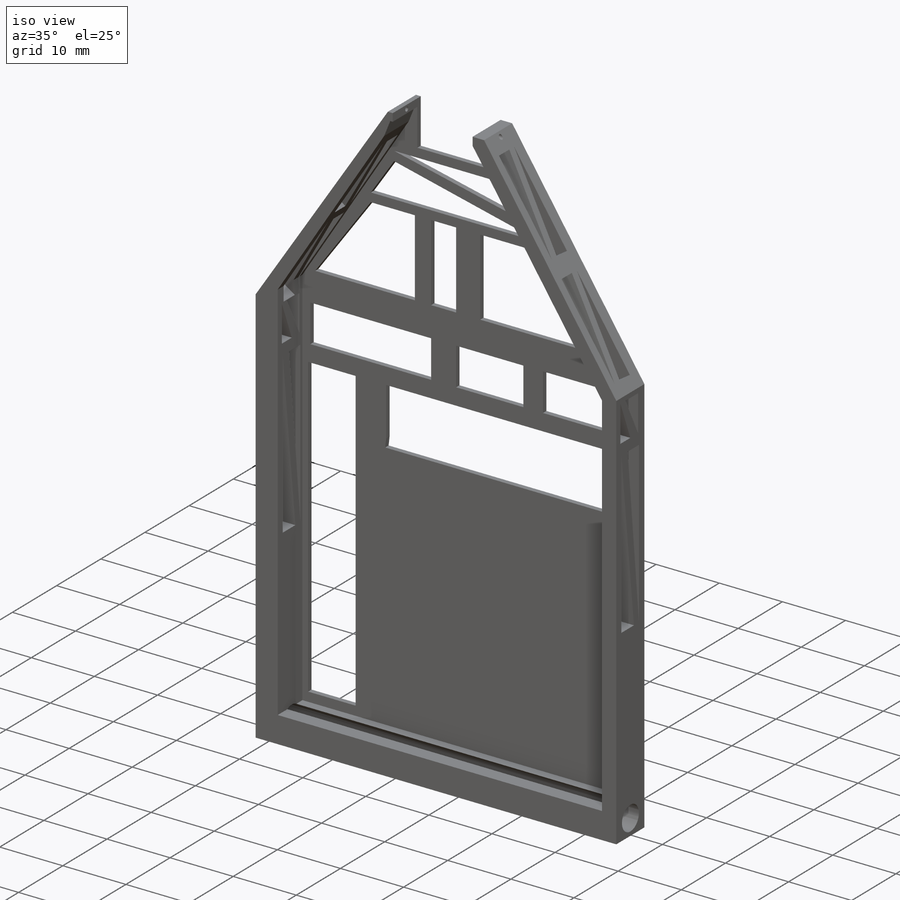
[diagram: iso view]
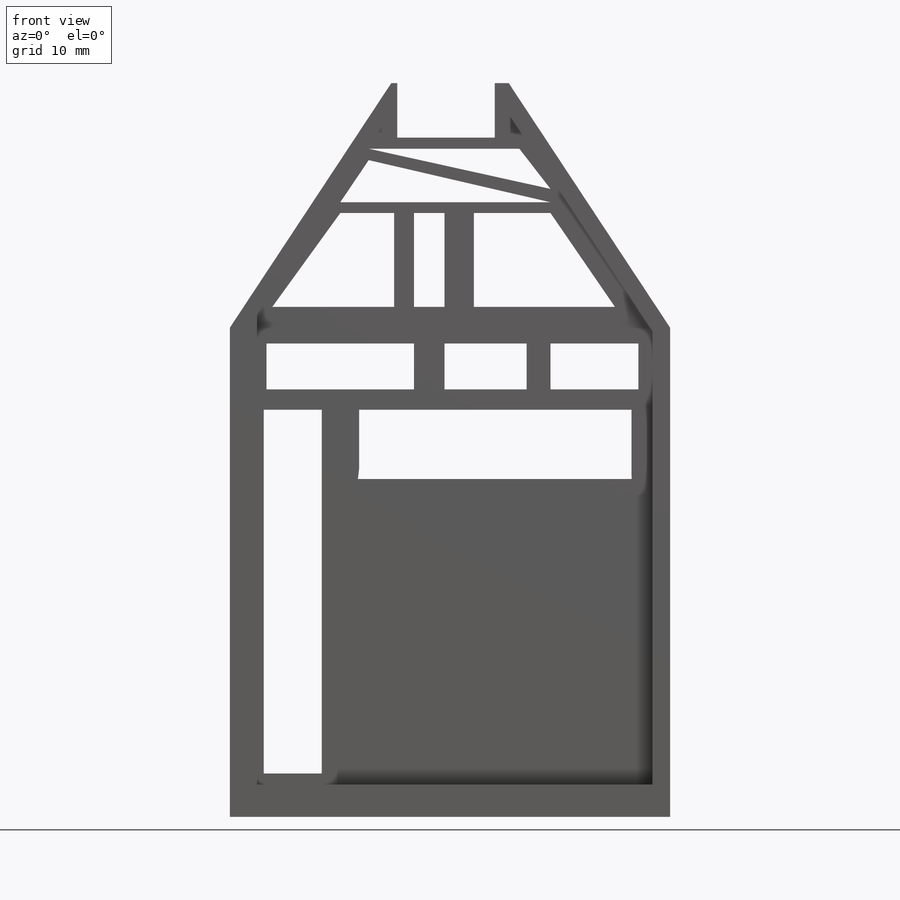
[diagram: front view]
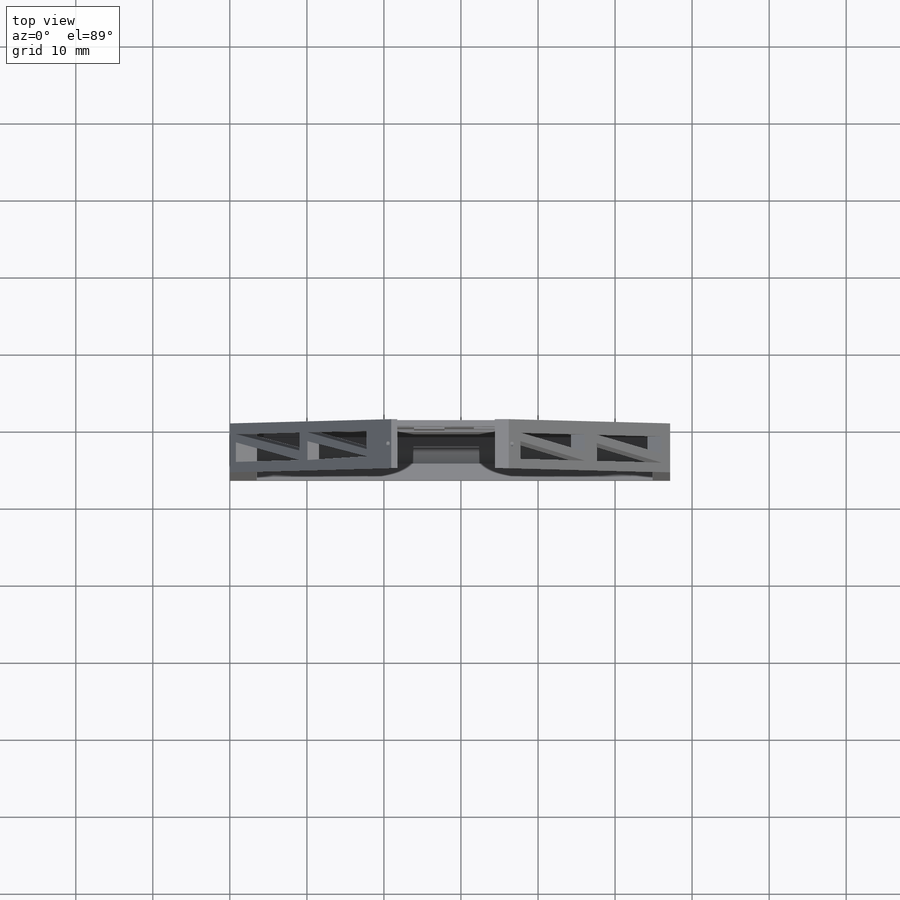
[diagram: top view]
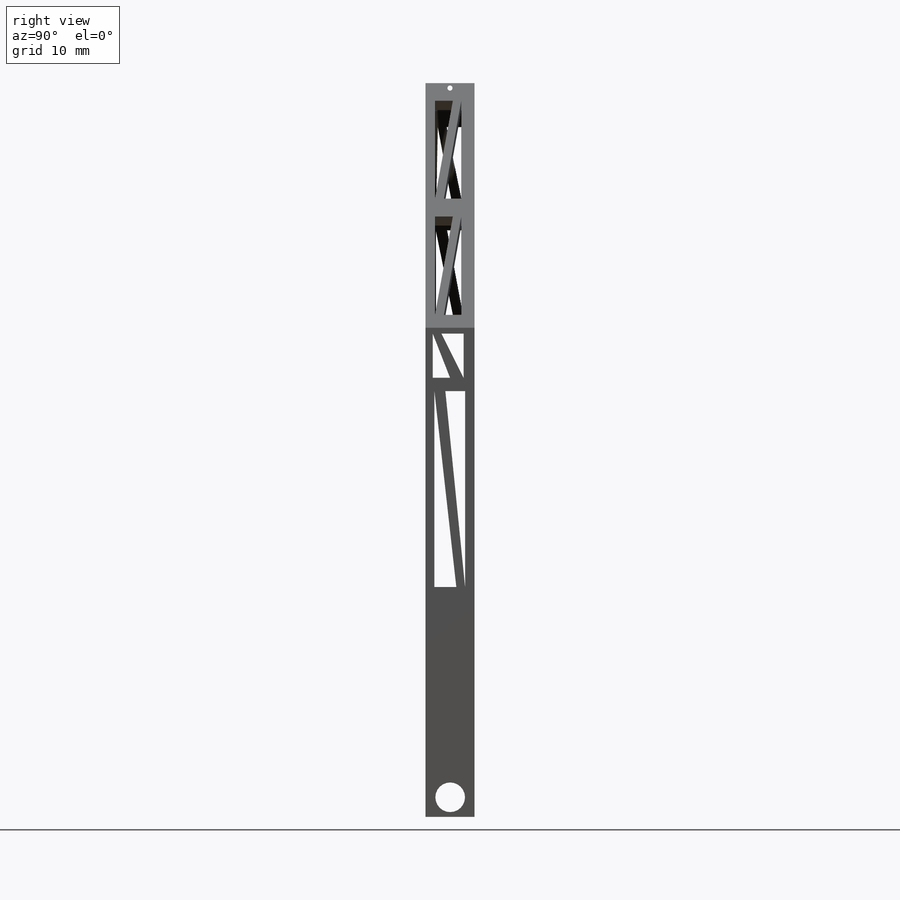
[diagram: right view]
SOLIDWORKS PART (.sldprt)
format: sldprt  version: not decoded by parser v0  size: 655,872 bytes
history: native  units: mm
features: sketch x20, cut_extrude x14, material x1, extrude x1 (+11 scaffold rows collapsed)
feature tree (47):
  scaffold x11  (default folders/planes/origin — collapsed)
  material  "Material <not specified>"
  sketch  "Sketch1"  dims[c1.D1=63.5mm c1.D2=57.15mm c1.D3=63.5mm c1.D4=31.75mm c1.D5=38.1mm c1.D6=38.1mm c2.D5=7.62mm]
  extrude  "Boss-Extrude2"  Depth=6.35mm
  sketch  "Sketch2"  dims[D1=38.1mm D2=38.1mm]
  cut_extrude  "Cut-Extrude1"  Depth=5.588mm
  sketch  "Sketch4"
  sketch  "Sketch5"
  cut_extrude  "Cut-Extrude3"  [1 undecoded]
  sketch  "Sketch6"
  cut_extrude  "Cut-Extrude4"  [1 undecoded]
  sketch  "Sketch7"
  cut_extrude  "Cut-Extrude5"  Depth=5.588mm
  sketch  "Sketch8"
  cut_extrude  "Cut-Extrude6"  Depth=5.588mm
  sketch  "Sketch9"
  cut_extrude  "Cut-Extrude7"  Depth=5.588mm
  sketch  "Sketch10"  dims[c1.D2=1.016mm c1.D1=3.175mm c2.D2=3.175mm c2.D1=3.175mm]
  sketch  "Sketch13"
  sketch  "Sketch14"  dims[D1=38.1mm D2=38.1mm D3=7.62mm]
  cut_extrude  "Cut-Extrude15"  [1 undecoded]
  sketch  "Sketch15"  dims[D1=38.1mm]
  cut_extrude  "Cut-Extrude16"  [1 undecoded]
  sketch  "Sketch16"
  cut_extrude  "Cut-Extrude18"  [1 undecoded]
  sketch  "Sketch24"
  cut_extrude  "Cut-Extrude24"  [1 undecoded]
  sketch  "Sketch25"
  cut_extrude  "Cut-Extrude25"  Depth=11.684mm
  sketch  "Sketch26"
  cut_extrude  "Cut-Extrude26"  Depth=11.684mm
  sketch  "Sketch28"
  cut_extrude  "Cut-Extrude27"  [1 undecoded]
  sketch  "Sketch29"
  cut_extrude  "Cut-Extrude28"  [1 undecoded]
  sketch  "Sketch30"  dims[D1=0.0mm]
  sketch  "Sketch31"  dims[D1=17.78mm D2=~12.653655mm]
decode coverage: 14 of 35 modeling features carry decoded parameters
note: ~ marks probable driven/reference dimensions
note: 8 parameter values undecoded
summary: no parameter record found for 8 features
note: suppression state not decoded; provenance and decode notes live in map.json
